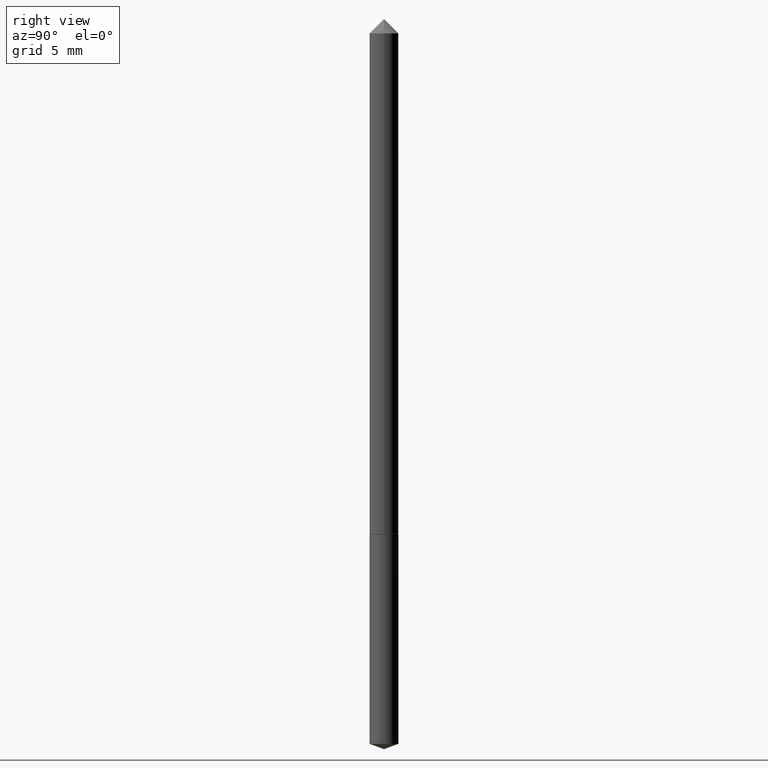
[diagram: clean part render]
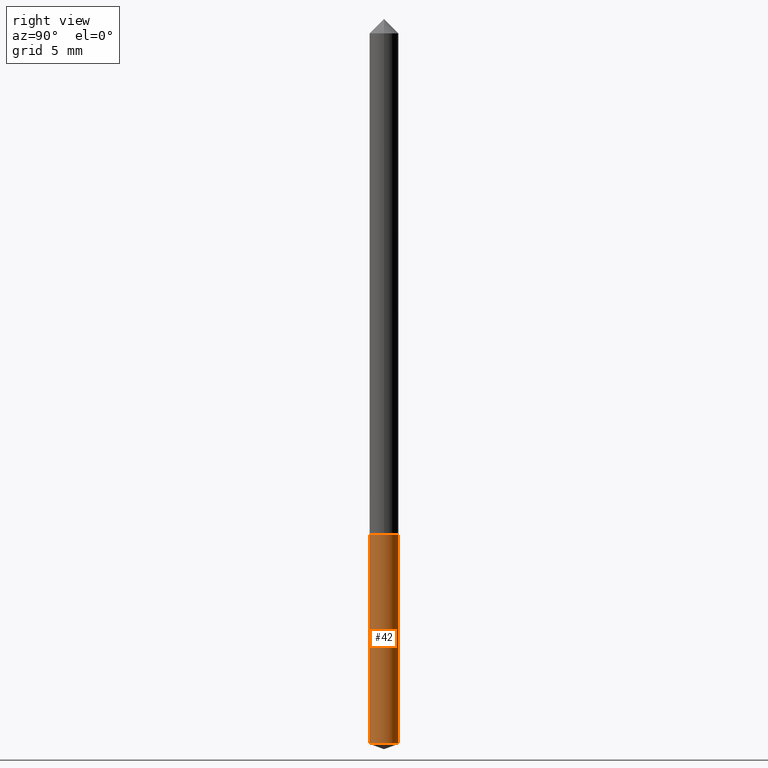
[diagram: same view with one face highlighted and labeled with its STEP entity id]
A machine part, right view. The second image highlights one B-rep face of the part: STEP entity #42.
In plain terms, the highlighted cylindrical surface (edge-blend (fillet) strip) has radius 0.7556 mm, axis along (-0, 0, 1).
Its self-contained STEP definition (entity closure, byte-faithful):
#27 = ORIENTED_EDGE ( 'NONE', *, *, #119, .T. ) ;
#42 = ADVANCED_FACE ( 'NONE', ( #216 ), #140, .T. ) ;
#43 = AXIS2_PLACEMENT_3D ( 'NONE', #170, #281, #169 ) ;
#46 = DIRECTION ( 'NONE',  ( -6.982962677686265922E-15, -1.000000000000000000, 4.591341165822291216E-15 ) ) ;
#66 = EDGE_CURVE ( 'NONE', #352, #137, #186, .T. ) ;
#77 = DIRECTION ( 'NONE',  ( -2.445476136676092490E-29, 3.491470841162871062E-15, 1.000000000000000000 ) ) ;
#116 = CARTESIAN_POINT ( 'NONE',  ( 2.113864638886661574E-16, 0.02974999999999479450, -1.489171885530580886 ) ) ;
#119 = EDGE_CURVE ( 'NONE', #137, #320, #298, .T. ) ;
#127 = AXIS2_PLACEMENT_3D ( 'NONE', #360, #274, #220 ) ;
#128 = ORIENTED_EDGE ( 'NONE', *, *, #66, .T. ) ;
#137 = VERTEX_POINT ( 'NONE', #116 ) ;
#140 = CYLINDRICAL_SURFACE ( 'NONE', #127, 0.02974999999999999867 ) ;
#151 = CARTESIAN_POINT ( 'NONE',  ( -2.077431396611299340E-16, -0.02975000000000519590, -1.489171885530580886 ) ) ;
#169 = DIRECTION ( 'NONE',  ( -6.982962677686265922E-15, -1.000000000000000000, 0.000000000000000000 ) ) ;
#170 = CARTESIAN_POINT ( 'NONE',  ( 3.641726542818809311E-29, -5.199411338101806967E-15, -1.489171885530580886 ) ) ;
#175 = DIRECTION ( 'NONE',  ( -2.445476136676092490E-29, 3.491470841162871062E-15, 1.000000000000000000 ) ) ;
#184 = EDGE_LOOP ( 'NONE', ( #128, #27, #242, #212 ) ) ;
#186 = CIRCLE ( 'NONE', #43, 0.02974999999999999867 ) ;
#187 = CARTESIAN_POINT ( 'NONE',  ( 2.113864638886662806E-16, 0.02974999999999630024, -1.059500000000000330 ) ) ;
#189 = EDGE_CURVE ( 'NONE', #352, #294, #192, .T. ) ;
#190 = EDGE_CURVE ( 'NONE', #294, #320, #328, .T. ) ;
#192 = LINE ( 'NONE', #282, #214 ) ;
#211 = VECTOR ( 'NONE', #175, 39.37007874015748143 ) ;
#212 = ORIENTED_EDGE ( 'NONE', *, *, #189, .F. ) ;
#214 = VECTOR ( 'NONE', #283, 39.37007874015748143 ) ;
#216 = FACE_OUTER_BOUND ( 'NONE', #184, .T. ) ;
#220 = DIRECTION ( 'NONE',  ( -6.982962677686265922E-15, -1.000000000000000000, 4.591341165822291216E-15 ) ) ;
#242 = ORIENTED_EDGE ( 'NONE', *, *, #190, .F. ) ;
#249 = CARTESIAN_POINT ( 'NONE',  ( 2.590974200153152507E-29, -3.699224478504313579E-15, -1.059500000000000108 ) ) ;
#271 = AXIS2_PLACEMENT_3D ( 'NONE', #249, #77, #46 ) ;
#274 = DIRECTION ( 'NONE',  ( -2.445476136676092490E-29, 3.491470841162871062E-15, 1.000000000000000000 ) ) ;
#281 = DIRECTION ( 'NONE',  ( -2.445476136676092490E-29, 3.491470841162871062E-15, 1.000000000000000000 ) ) ;
#282 = CARTESIAN_POINT ( 'NONE',  ( -2.077431396611405097E-16, -0.02975000000000370057, -1.059499999999999886 ) ) ;
#283 = DIRECTION ( 'NONE',  ( -2.445476136676092490E-29, 3.491470841162871062E-15, 1.000000000000000000 ) ) ;
#294 = VERTEX_POINT ( 'NONE', #314 ) ;
#298 = LINE ( 'NONE', #357, #211 ) ;
#314 = CARTESIAN_POINT ( 'NONE',  ( -2.077431396611405097E-16, -0.02975000000000370057, -1.059499999999999886 ) ) ;
#320 = VERTEX_POINT ( 'NONE', #187 ) ;
#328 = CIRCLE ( 'NONE', #271, 0.02974999999999999867 ) ;
#352 = VERTEX_POINT ( 'NONE', #151 ) ;
#357 = CARTESIAN_POINT ( 'NONE',  ( 2.113864638886556803E-16, 0.02974999999999630024, -1.059500000000000330 ) ) ;
#360 = CARTESIAN_POINT ( 'NONE',  ( 2.590974200153152507E-29, -3.699224478504313579E-15, -1.059500000000000108 ) ) ;